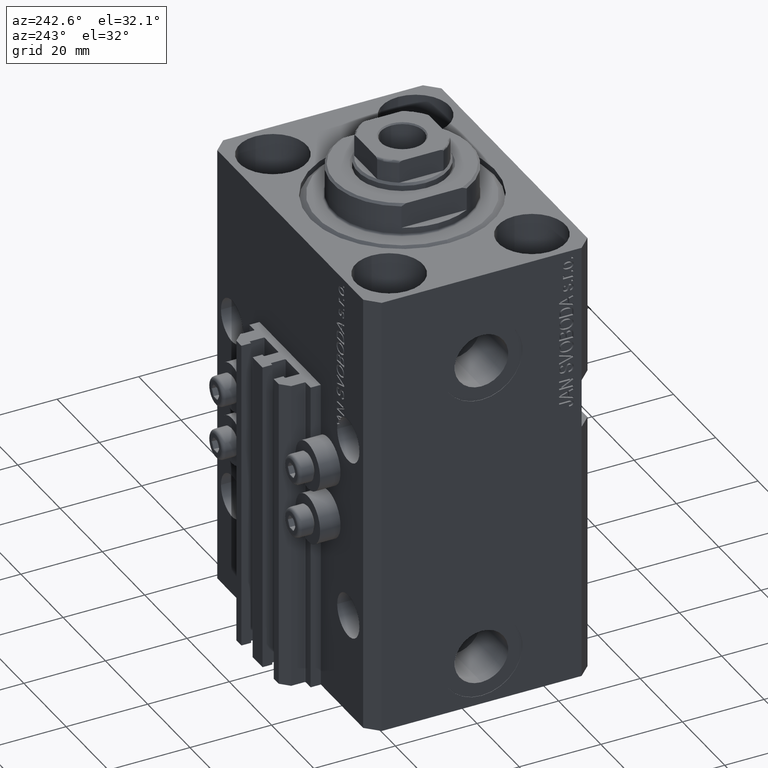
[diagram: clean part render]
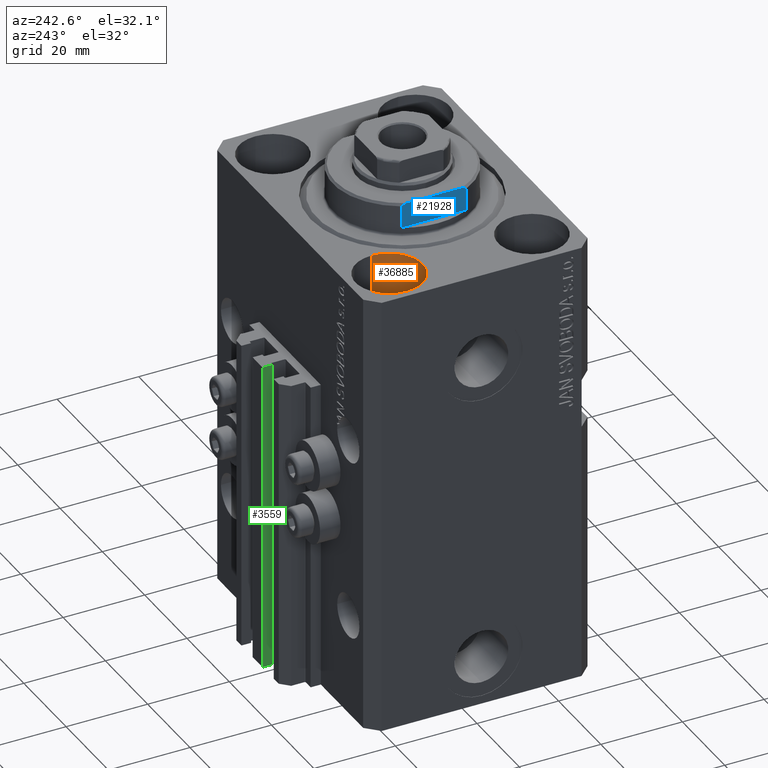
[diagram: same view with three faces highlighted in distinct colors, each labeled with its STEP entity id]
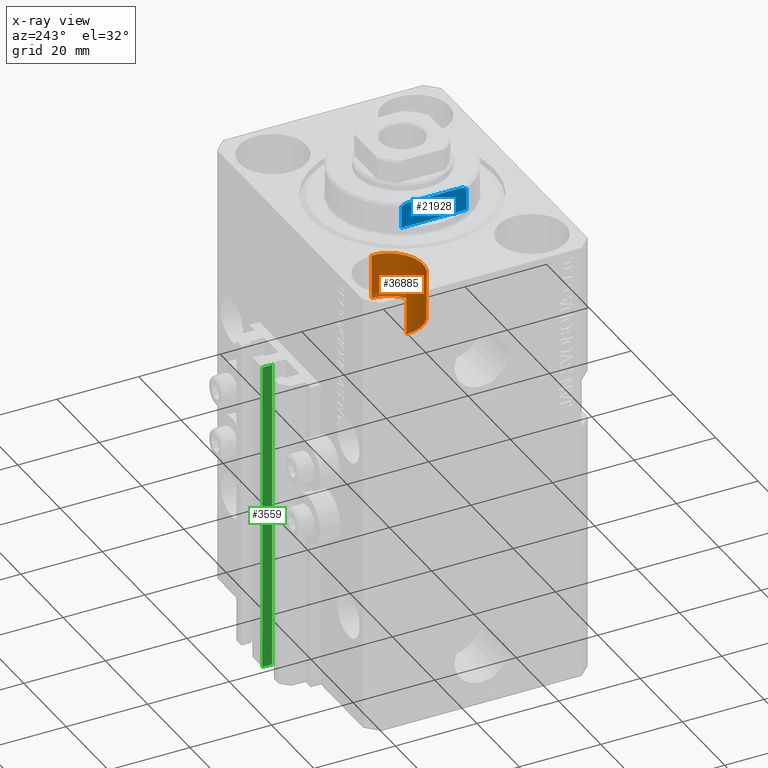
[diagram: x-ray of the same camera — body ghosted, the three highlighted faces saturated]
A machine part, auxiliary view with three faces highlighted in distinct colors.
The next image is the same camera in x-ray (body ghosted, the three faces saturated) — at least one of them is partly hidden behind the body in this view.
Their STEP definitions:

[orange] entity #36885 — the highlighted cylindrical surface (partial cylindrical patch) has radius 8.25 mm, axis along (0, 0, 1).
#3 = DIRECTION ( 'NONE',  ( -0.000000000000000000, -0.000000000000000000, 1.000000000000000000 ) ) ;
#858 = AXIS2_PLACEMENT_3D ( 'NONE', #14256, #9509, #2338 ) ;
#2338 = DIRECTION ( 'NONE',  ( 1.000000000000000000, 0.000000000000000000, 0.000000000000000000 ) ) ;
#3148 = CIRCLE ( 'NONE', #858, 8.250000000000000000 ) ;
#6961 = AXIS2_PLACEMENT_3D ( 'NONE', #37662, #37429, #26183 ) ;
#7773 = EDGE_CURVE ( 'NONE', #44579, #33943, #17452, .T. ) ;
#8687 = DIRECTION ( 'NONE',  ( -0.000000000000000000, -0.000000000000000000, 1.000000000000000000 ) ) ;
#9509 = DIRECTION ( 'NONE',  ( 0.000000000000000000, 0.000000000000000000, 1.000000000000000000 ) ) ;
#11819 = FACE_OUTER_BOUND ( 'NONE', #26365, .T. ) ;
#12456 = EDGE_CURVE ( 'NONE', #19454, #23378, #3148, .T. ) ;
#14256 = CARTESIAN_POINT ( 'NONE',  ( -27.50000000000000355, 17.50000000000000000, -11.00000000000000000 ) ) ;
#17452 = CIRCLE ( 'NONE', #37333, 8.250000000000000000 ) ;
#17666 = CARTESIAN_POINT ( 'NONE',  ( -35.75000000000000711, 17.50000000000000000, 0.000000000000000000 ) ) ;
#18173 = DIRECTION ( 'NONE',  ( 0.000000000000000000, 0.000000000000000000, 1.000000000000000000 ) ) ;
#18410 = CARTESIAN_POINT ( 'NONE',  ( -27.50000000000000355, 17.50000000000000000, 0.000000000000000000 ) ) ;
#19454 = VERTEX_POINT ( 'NONE', #47375 ) ;
#22259 = LINE ( 'NONE', #43574, #23413 ) ;
#23166 = ORIENTED_EDGE ( 'NONE', *, *, #12456, .F. ) ;
#23378 = VERTEX_POINT ( 'NONE', #38793 ) ;
#23413 = VECTOR ( 'NONE', #3, 1000.000000000000000 ) ;
#26183 = DIRECTION ( 'NONE',  ( 1.000000000000000000, 0.000000000000000000, 0.000000000000000000 ) ) ;
#26365 = EDGE_LOOP ( 'NONE', ( #23166, #41565, #32792, #44457 ) ) ;
#26540 = VECTOR ( 'NONE', #8687, 1000.000000000000000 ) ;
#26568 = EDGE_CURVE ( 'NONE', #19454, #44579, #22259, .T. ) ;
#26869 = CARTESIAN_POINT ( 'NONE',  ( -19.25000000000000355, 17.50000000000000000, -11.00000000000000000 ) ) ;
#32792 = ORIENTED_EDGE ( 'NONE', *, *, #7773, .T. ) ;
#33329 = LINE ( 'NONE', #26869, #26540 ) ;
#33943 = VERTEX_POINT ( 'NONE', #41045 ) ;
#35886 = DIRECTION ( 'NONE',  ( 1.000000000000000000, 0.000000000000000000, 0.000000000000000000 ) ) ;
#36885 = ADVANCED_FACE ( 'NONE', ( #11819 ), #37900, .F. ) ;
#37333 = AXIS2_PLACEMENT_3D ( 'NONE', #18410, #18173, #35886 ) ;
#37429 = DIRECTION ( 'NONE',  ( -0.000000000000000000, -0.000000000000000000, 1.000000000000000000 ) ) ;
#37662 = CARTESIAN_POINT ( 'NONE',  ( -27.50000000000000355, 17.50000000000000000, -11.00000000000000000 ) ) ;
#37900 = CYLINDRICAL_SURFACE ( 'NONE', #6961, 8.250000000000000000 ) ;
#38793 = CARTESIAN_POINT ( 'NONE',  ( -19.25000000000000355, 17.50000000000000000, -11.00000000000000000 ) ) ;
#41045 = CARTESIAN_POINT ( 'NONE',  ( -19.25000000000000355, 17.50000000000000000, 0.000000000000000000 ) ) ;
#41565 = ORIENTED_EDGE ( 'NONE', *, *, #26568, .T. ) ;
#42144 = EDGE_CURVE ( 'NONE', #23378, #33943, #33329, .T. ) ;
#43574 = CARTESIAN_POINT ( 'NONE',  ( -35.75000000000000711, 17.50000000000000000, -11.00000000000000000 ) ) ;
#44457 = ORIENTED_EDGE ( 'NONE', *, *, #42144, .F. ) ;
#44579 = VERTEX_POINT ( 'NONE', #17666 ) ;
#47375 = CARTESIAN_POINT ( 'NONE',  ( -35.75000000000000711, 17.50000000000000000, -11.00000000000000000 ) ) ;

[blue] entity #21928 — the highlighted planar face has unit normal (-1, 0, 0).
#658 = EDGE_LOOP ( 'NONE', ( #12033, #37611, #15763, #44115, #30200, #4899 ) ) ;
#1527 = PLANE ( 'NONE',  #27916 ) ;
#2713 = DIRECTION ( 'NONE',  ( -0.000000000000000000, -0.000000000000000000, 1.000000000000000000 ) ) ;
#3209 = CARTESIAN_POINT ( 'NONE',  ( 14.99999999999999645, -6.873863542433765517, -8.000000000000000000 ) ) ;
#4524 = EDGE_CURVE ( 'NONE', #46697, #39867, #13949, .T. ) ;
#4899 = ORIENTED_EDGE ( 'NONE', *, *, #46103, .F. ) ;
#5578 = CARTESIAN_POINT ( 'NONE',  ( 15.00000000000000000, -42.42640687119285303, -2.000000000000000000 ) ) ;
#6306 = LINE ( 'NONE', #31912, #16309 ) ;
#7910 = EDGE_CURVE ( 'NONE', #14168, #18335, #36351, .T. ) ;
#8938 = DIRECTION ( 'NONE',  ( 1.000000000000000000, 0.000000000000000000, -0.000000000000000000 ) ) ;
#9644 = FACE_OUTER_BOUND ( 'NONE', #658, .T. ) ;
#10514 = CARTESIAN_POINT ( 'NONE',  ( 15.00000000000000000, -8.000000000000001776, -8.000000000000000000 ) ) ;
#11061 = EDGE_CURVE ( 'NONE', #39867, #14168, #44822, .T. ) ;
#11563 = DIRECTION ( 'NONE',  ( 0.000000000000000000, -1.000000000000000000, -0.000000000000000000 ) ) ;
#11628 = VECTOR ( 'NONE', #11563, 1000.000000000000000 ) ;
#12033 = ORIENTED_EDGE ( 'NONE', *, *, #4524, .T. ) ;
#13660 = VECTOR ( 'NONE', #43783, 1000.000000000000000 ) ;
#13949 = LINE ( 'NONE', #42700, #47298 ) ;
#14168 = VERTEX_POINT ( 'NONE', #44895 ) ;
#14376 = VERTEX_POINT ( 'NONE', #3209 ) ;
#14785 = CARTESIAN_POINT ( 'NONE',  ( 15.00000000000000000, 8.000000000000001776, -7.500000000000007105 ) ) ;
#15763 = ORIENTED_EDGE ( 'NONE', *, *, #7910, .T. ) ;
#16309 = VECTOR ( 'NONE', #31460, 1000.000000000000000 ) ;
#17845 = EDGE_CURVE ( 'NONE', #35600, #14376, #6306, .T. ) ;
#18335 = VERTEX_POINT ( 'NONE', #35684 ) ;
#18388 = CARTESIAN_POINT ( 'NONE',  ( 15.00000000000000000, 7.628315461082481264, -7.674910371255307062 ) ) ;
#21928 = ADVANCED_FACE ( 'NONE', ( #9644 ), #1527, .T. ) ;
#26627 = EDGE_CURVE ( 'NONE', #14376, #18335, #46623, .T. ) ;
#27365 = DIRECTION ( 'NONE',  ( -0.000000000000000000, 0.000000000000000000, -1.000000000000000000 ) ) ;
#27916 = AXIS2_PLACEMENT_3D ( 'NONE', #5578, #8938, #27365 ) ;
#28466 = B_SPLINE_CURVE_WITH_KNOTS ( 'NONE', 3,
 ( #14785, #18388, #39697, #43054 ),
 .UNSPECIFIED., .F., .F.,
 ( 4, 4 ),
 ( 0.03336039268697043453, 0.03459498301323849639 ),
 .UNSPECIFIED. ) ;
#28722 = CARTESIAN_POINT ( 'NONE',  ( 14.99999999999999645, -6.873863542433765517, -8.000000000000000000 ) ) ;
#30200 = ORIENTED_EDGE ( 'NONE', *, *, #17845, .F. ) ;
#31460 = DIRECTION ( 'NONE',  ( 0.000000000000000000, -1.000000000000000000, -0.000000000000000000 ) ) ;
#31912 = CARTESIAN_POINT ( 'NONE',  ( 15.00000000000000000, -42.42640687119285303, -8.000000000000000000 ) ) ;
#35600 = VERTEX_POINT ( 'NONE', #43959 ) ;
#35684 = CARTESIAN_POINT ( 'NONE',  ( 15.00000000000000000, -8.000000000000001776, -7.500000000000007105 ) ) ;
#36351 = LINE ( 'NONE', #10514, #13660 ) ;
#36375 = CARTESIAN_POINT ( 'NONE',  ( 15.00000000000000000, -7.629305121525812083, -7.674444648693743432 ) ) ;
#37166 = CARTESIAN_POINT ( 'NONE',  ( 14.99999999999999645, 8.000000000000003553, -2.000000000000000000 ) ) ;
#37400 = CARTESIAN_POINT ( 'NONE',  ( 15.00000000000000000, -42.42640687119285303, -2.000000000000000000 ) ) ;
#37611 = ORIENTED_EDGE ( 'NONE', *, *, #11061, .T. ) ;
#39501 = CARTESIAN_POINT ( 'NONE',  ( 15.00000000000000000, -7.254193676168129379, -7.841555306644510281 ) ) ;
#39697 = CARTESIAN_POINT ( 'NONE',  ( 15.00000000000000000, 7.253126193285932111, -7.842000017654665811 ) ) ;
#39745 = CARTESIAN_POINT ( 'NONE',  ( 15.00000000000000000, -8.000000000000001776, -7.500000000000007105 ) ) ;
#39867 = VERTEX_POINT ( 'NONE', #37166 ) ;
#40700 = CARTESIAN_POINT ( 'NONE',  ( 15.00000000000000000, 8.000000000000001776, -7.500000000000007105 ) ) ;
#42700 = CARTESIAN_POINT ( 'NONE',  ( 15.00000000000000000, 8.000000000000001776, -8.000000000000000000 ) ) ;
#43054 = CARTESIAN_POINT ( 'NONE',  ( 14.99999999999999645, 6.873863542433765517, -8.000000000000000000 ) ) ;
#43783 = DIRECTION ( 'NONE',  ( 0.000000000000000000, 0.000000000000000000, -1.000000000000000000 ) ) ;
#43959 = CARTESIAN_POINT ( 'NONE',  ( 14.99999999999999645, 6.873863542433765517, -8.000000000000000000 ) ) ;
#44115 = ORIENTED_EDGE ( 'NONE', *, *, #26627, .F. ) ;
#44822 = LINE ( 'NONE', #37400, #11628 ) ;
#44895 = CARTESIAN_POINT ( 'NONE',  ( 14.99999999999999645, -8.000000000000003553, -2.000000000000000000 ) ) ;
#46103 = EDGE_CURVE ( 'NONE', #46697, #35600, #28466, .T. ) ;
#46623 = B_SPLINE_CURVE_WITH_KNOTS ( 'NONE', 3,
 ( #28722, #39501, #36375, #39745 ),
 .UNSPECIFIED., .F., .F.,
 ( 4, 4 ),
 ( 0.04875332532859059237, 0.04998905627745663105 ),
 .UNSPECIFIED. ) ;
#46697 = VERTEX_POINT ( 'NONE', #40700 ) ;
#47298 = VECTOR ( 'NONE', #2713, 1000.000000000000000 ) ;

[green] entity #3559 — the highlighted planar face has unit normal (-1, -0, 0).
#460 = CARTESIAN_POINT ( 'NONE',  ( -2.350000000000003642, 35.50000000000001421, -110.0000000000000000 ) ) ;
#960 = VECTOR ( 'NONE', #9203, 1000.000000000000000 ) ;
#2668 = EDGE_CURVE ( 'NONE', #35512, #7191, #45749, .T. ) ;
#3559 = ADVANCED_FACE ( 'NONE', ( #27016 ), #15529, .T. ) ;
#7191 = VERTEX_POINT ( 'NONE', #31252 ) ;
#9159 = ORIENTED_EDGE ( 'NONE', *, *, #46694, .T. ) ;
#9203 = DIRECTION ( 'NONE',  ( 1.807003620809174632E-16, -1.000000000000000000, 0.000000000000000000 ) ) ;
#10698 = ORIENTED_EDGE ( 'NONE', *, *, #32642, .F. ) ;
#10788 = DIRECTION ( 'NONE',  ( 0.000000000000000000, 0.000000000000000000, 1.000000000000000000 ) ) ;
#11405 = VECTOR ( 'NONE', #10788, 1000.000000000000000 ) ;
#11434 = EDGE_LOOP ( 'NONE', ( #23978, #10698, #16798, #9159 ) ) ;
#11940 = DIRECTION ( 'NONE',  ( -1.000000000000000000, -1.807003620809174632E-16, 0.000000000000000000 ) ) ;
#14342 = VECTOR ( 'NONE', #38786, 1000.000000000000000 ) ;
#14858 = VERTEX_POINT ( 'NONE', #460 ) ;
#15529 = PLANE ( 'NONE',  #47267 ) ;
#15587 = EDGE_CURVE ( 'NONE', #14858, #15832, #19253, .T. ) ;
#15832 = VERTEX_POINT ( 'NONE', #37071 ) ;
#16798 = ORIENTED_EDGE ( 'NONE', *, *, #15587, .T. ) ;
#17426 = DIRECTION ( 'NONE',  ( 0.000000000000000000, 0.000000000000000000, 1.000000000000000000 ) ) ;
#19253 = LINE ( 'NONE', #30249, #960 ) ;
#20371 = CARTESIAN_POINT ( 'NONE',  ( -2.350000000000003642, 35.50000000000001421, -33.00000000000000000 ) ) ;
#21017 = CARTESIAN_POINT ( 'NONE',  ( -2.350000000000003642, 35.50000000000001421, -110.0000000000000000 ) ) ;
#21571 = LINE ( 'NONE', #21802, #11405 ) ;
#21802 = CARTESIAN_POINT ( 'NONE',  ( -2.350000000000003197, 33.10000000000000853, -110.0000000000000000 ) ) ;
#23978 = ORIENTED_EDGE ( 'NONE', *, *, #2668, .F. ) ;
#27016 = FACE_OUTER_BOUND ( 'NONE', #11434, .T. ) ;
#30122 = CARTESIAN_POINT ( 'NONE',  ( -2.350000000000003642, 35.50000000000001421, -110.0000000000000000 ) ) ;
#30249 = CARTESIAN_POINT ( 'NONE',  ( -2.350000000000003642, 35.50000000000001421, -110.0000000000000000 ) ) ;
#31252 = CARTESIAN_POINT ( 'NONE',  ( -2.350000000000003197, 33.10000000000000853, -33.00000000000000000 ) ) ;
#32642 = EDGE_CURVE ( 'NONE', #14858, #35512, #35163, .T. ) ;
#35028 = VECTOR ( 'NONE', #17426, 1000.000000000000000 ) ;
#35163 = LINE ( 'NONE', #21017, #35028 ) ;
#35512 = VERTEX_POINT ( 'NONE', #46383 ) ;
#37071 = CARTESIAN_POINT ( 'NONE',  ( -2.350000000000003197, 33.10000000000000853, -110.0000000000000000 ) ) ;
#37547 = DIRECTION ( 'NONE',  ( 1.807003620809174632E-16, -1.000000000000000000, 0.000000000000000000 ) ) ;
#38786 = DIRECTION ( 'NONE',  ( 1.807003620809174632E-16, -1.000000000000000000, 0.000000000000000000 ) ) ;
#45749 = LINE ( 'NONE', #20371, #14342 ) ;
#46383 = CARTESIAN_POINT ( 'NONE',  ( -2.350000000000003642, 35.50000000000001421, -33.00000000000000000 ) ) ;
#46694 = EDGE_CURVE ( 'NONE', #15832, #7191, #21571, .T. ) ;
#47267 = AXIS2_PLACEMENT_3D ( 'NONE', #30122, #11940, #37547 ) ;